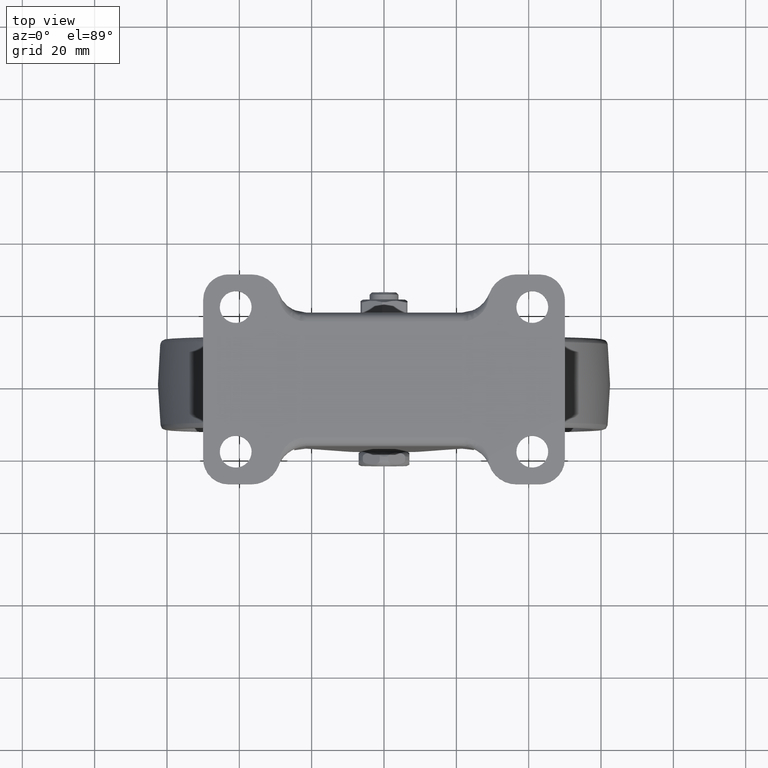
[diagram: clean part render]
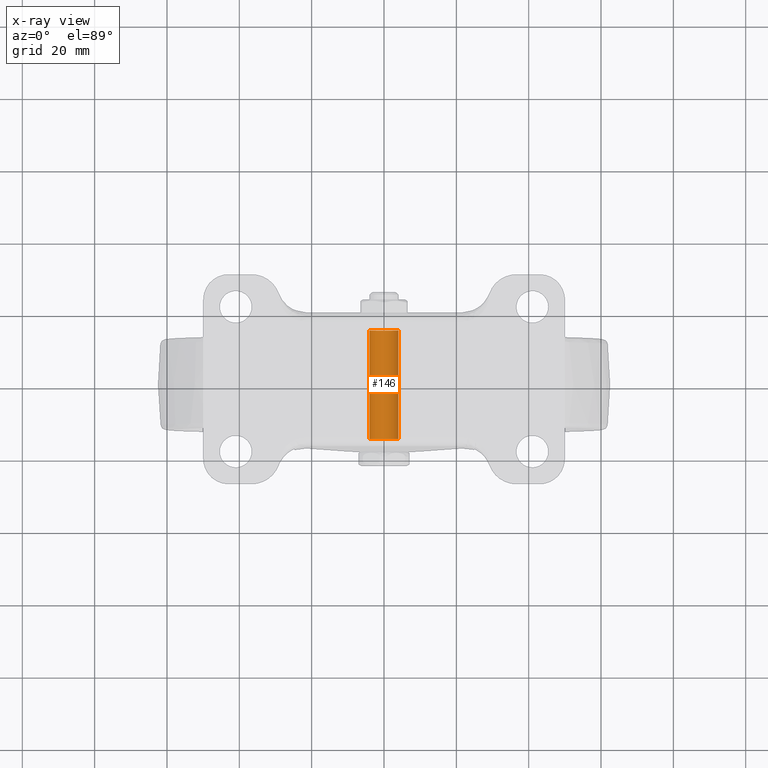
[diagram: x-ray — body ghosted, one internal face saturated and labeled with its STEP entity id]
A machine part, top view, then the same camera in x-ray: the body is ghosted and one INTERNAL B-rep face — a face not visible from any outside direction — is saturated and labeled: STEP entity #146.
In plain terms, the highlighted face is a freeform B-spline surface patch.
Its self-contained STEP definition (entity closure, byte-faithful):
#44=CARTESIAN_POINT('',(-35.027961894545349,-15.750000000000005,-83.027863061372983));
#45=CARTESIAN_POINT('',(-35.014449538205582,-15.750000000000007,-83.141541085448111));
#46=CARTESIAN_POINT('',(-35.007460806312537,-15.750000000000000,-83.255805841860578));
#47=CARTESIAN_POINT('',(-34.763266648173108,-15.750000000000009,-87.248345035548041));
#48=CARTESIAN_POINT('',(-38.755805841860571,-15.750000000000000,-87.492539193687463));
#49=CARTESIAN_POINT('',(-42.748345035548034,-15.750000000000009,-87.736733351826885));
#50=CARTESIAN_POINT('',(-42.992539193687463,-15.750000000000000,-83.744194158139422));
#51=CARTESIAN_POINT('',(-35.027961894545349,15.768750000000006,-83.027863061372983));
#52=CARTESIAN_POINT('',(-35.014449538205582,15.768750000000006,-83.141541085448111));
#53=CARTESIAN_POINT('',(-35.007460806312537,15.768750000000001,-83.255805841860578));
#54=CARTESIAN_POINT('',(-34.763266648173108,15.768749999999997,-87.248345035548041));
#55=CARTESIAN_POINT('',(-38.755805841860571,15.768750000000001,-87.492539193687463));
#56=CARTESIAN_POINT('',(-42.748345035548034,15.768749999999997,-87.736733351826885));
#57=CARTESIAN_POINT('',(-42.992539193687463,15.768750000000001,-83.744194158139422));
#65=(BOUNDED_SURFACE()B_SPLINE_SURFACE(2,1,((#44,#51),(#45,#52),(#46,#53),(#47,#54),(#48,#55),(#49,#56),(#50,#57)),.UNSPECIFIED.,.F.,.F.,.U.)B_SPLINE_SURFACE_WITH_KNOTS((3,2,2,3),(2,2),(0.0,0.265096679918781,6.892513677888295,13.519930675857809),(0.0,31.518750000000011),.UNSPECIFIED.)GEOMETRIC_REPRESENTATION_ITEM()RATIONAL_B_SPLINE_SURFACE(((0.977505800795127,0.977505800795127),(0.988284271247462,0.988284271247462),(1.0,1.0),(0.707106781186548,0.707106781186548),(1.0,1.0),(0.707106781186548,0.707106781186548),(1.0,1.0)))REPRESENTATION_ITEM('')SURFACE());
#66=CARTESIAN_POINT('',(-35.027961894592138,-15.0,-83.027863060979215));
#67=VERTEX_POINT('',#66);
#68=CARTESIAN_POINT('',(-39.0,-15.0,-87.500000000000014));
#69=VERTEX_POINT('',#68);
#70=CARTESIAN_POINT('',(-35.027961894592138,-15.000000000000004,-83.027863060979215));
#71=CARTESIAN_POINT('',(-35.0,-14.999999999999998,-83.263103520994449));
#72=CARTESIAN_POINT('',(-35.0,-15.0,-83.500000000000000));
#73=CARTESIAN_POINT('',(-34.999999999999993,-14.999999999999995,-87.500000000000028));
#74=CARTESIAN_POINT('',(-39.0,-15.0,-87.500000000000014));
#82=(BOUNDED_CURVE()B_SPLINE_CURVE(2,(#70,#71,#72,#73,#74),.UNSPECIFIED.,.F.,.U.)B_SPLINE_CURVE_WITH_KNOTS((3,2,3),(0.229562473482137,0.250000000000000,0.500000000000000),.UNSPECIFIED.)CURVE()GEOMETRIC_REPRESENTATION_ITEM()RATIONAL_B_SPLINE_CURVE((0.956026754122211,0.976055948294391,1.0,0.707106781186548,1.0))REPRESENTATION_ITEM(''));
#83=EDGE_CURVE('',#67,#69,#82,.T.);
#84=ORIENTED_EDGE('',*,*,#83,.F.);
#85=CARTESIAN_POINT('',(-35.027961894592138,15.0,-83.027863060979200));
#86=VERTEX_POINT('',#85);
#87=CARTESIAN_POINT('',(-35.027961894592138,-15.0,-83.027863060979215));
#88=CARTESIAN_POINT('',(-35.027961894592138,15.0,-83.027863060979200));
#89=QUASI_UNIFORM_CURVE('',1,(#87,#88),.UNSPECIFIED.,.F.,.U.);
#90=EDGE_CURVE('',#67,#86,#89,.T.);
#91=ORIENTED_EDGE('',*,*,#90,.T.);
#92=CARTESIAN_POINT('',(-39.0,15.0,-87.500000000000014));
#93=VERTEX_POINT('',#92);
#94=CARTESIAN_POINT('',(-35.027961894592131,14.999999999999996,-83.027863060979200));
#95=CARTESIAN_POINT('',(-35.0,15.000000000000002,-83.263103520994449));
#96=CARTESIAN_POINT('',(-35.0,15.0,-83.500000000000000));
#97=CARTESIAN_POINT('',(-34.999999999999993,14.999999999999995,-87.500000000000028));
#98=CARTESIAN_POINT('',(-39.0,15.0,-87.500000000000014));
#106=(BOUNDED_CURVE()B_SPLINE_CURVE(2,(#94,#95,#96,#97,#98),.UNSPECIFIED.,.F.,.U.)B_SPLINE_CURVE_WITH_KNOTS((3,2,3),(0.229562473482137,0.250000000000000,0.500000000000000),.UNSPECIFIED.)CURVE()GEOMETRIC_REPRESENTATION_ITEM()RATIONAL_B_SPLINE_CURVE((0.956026754122210,0.976055948294391,1.0,0.707106781186548,1.0))REPRESENTATION_ITEM(''));
#107=EDGE_CURVE('',#86,#93,#106,.T.);
#108=ORIENTED_EDGE('',*,*,#107,.T.);
#109=CARTESIAN_POINT('',(-42.992539193654707,15.0,-83.744194158674986));
#110=VERTEX_POINT('',#109);
#111=CARTESIAN_POINT('',(-39.0,15.0,-87.500000000000014));
#112=CARTESIAN_POINT('',(-42.762824266611410,14.999999999999996,-87.500000000000043));
#113=CARTESIAN_POINT('',(-42.992539193654707,15.000000000000005,-83.744194158674986));
#121=(BOUNDED_CURVE()B_SPLINE_CURVE(2,(#111,#112,#113),.UNSPECIFIED.,.F.,.U.)B_SPLINE_CURVE_WITH_KNOTS((3,3),(0.500000000000000,0.739332962195677),.UNSPECIFIED.)CURVE()GEOMETRIC_REPRESENTATION_ITEM()RATIONAL_B_SPLINE_CURVE((1.0,0.719603993337399,0.976072041573992))REPRESENTATION_ITEM(''));
#122=EDGE_CURVE('',#93,#110,#121,.T.);
#123=ORIENTED_EDGE('',*,*,#122,.T.);
#124=CARTESIAN_POINT('',(-42.992539193654707,-15.0,-83.744194158674986));
#125=VERTEX_POINT('',#124);
#126=CARTESIAN_POINT('',(-42.992539193654707,-15.0,-83.744194158674986));
#127=CARTESIAN_POINT('',(-42.992539193654707,15.0,-83.744194158674986));
#128=QUASI_UNIFORM_CURVE('',1,(#126,#127),.UNSPECIFIED.,.F.,.U.);
#129=EDGE_CURVE('',#125,#110,#128,.T.);
#130=ORIENTED_EDGE('',*,*,#129,.F.);
#131=CARTESIAN_POINT('',(-39.0,-15.0,-87.500000000000014));
#132=CARTESIAN_POINT('',(-42.762824266611410,-14.999999999999996,-87.500000000000043));
#133=CARTESIAN_POINT('',(-42.992539193654707,-15.000000000000005,-83.744194158674986));
#141=(BOUNDED_CURVE()B_SPLINE_CURVE(2,(#131,#132,#133),.UNSPECIFIED.,.F.,.U.)B_SPLINE_CURVE_WITH_KNOTS((3,3),(0.500000000000000,0.739332962195677),.UNSPECIFIED.)CURVE()GEOMETRIC_REPRESENTATION_ITEM()RATIONAL_B_SPLINE_CURVE((1.0,0.719603993337399,0.976072041573992))REPRESENTATION_ITEM(''));
#142=EDGE_CURVE('',#69,#125,#141,.T.);
#143=ORIENTED_EDGE('',*,*,#142,.F.);
#144=EDGE_LOOP('',(#84,#91,#108,#123,#130,#143));
#145=FACE_OUTER_BOUND('',#144,.T.);
#146=ADVANCED_FACE('',(#145),#65,.F.);